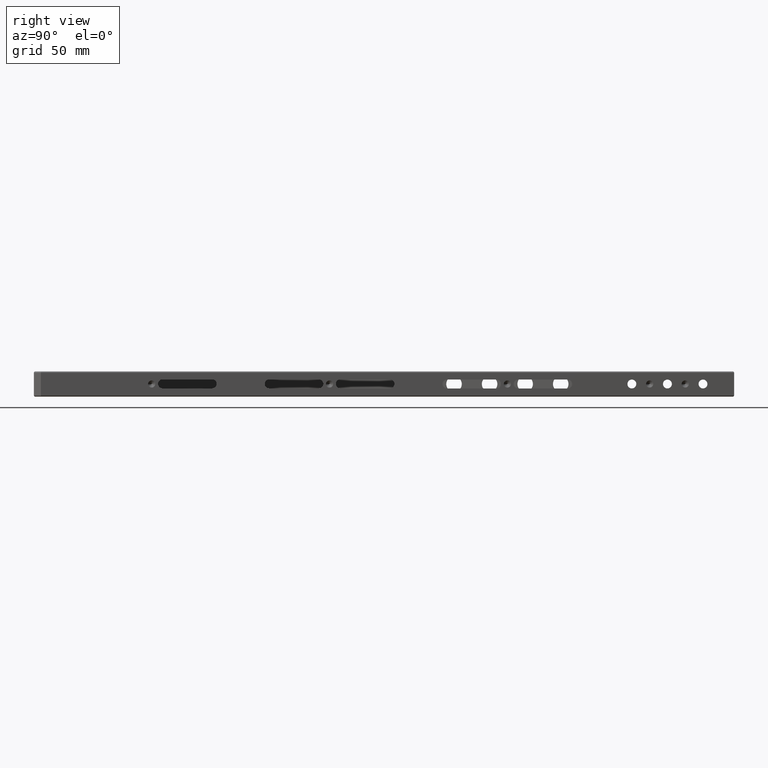
[diagram: clean part render]
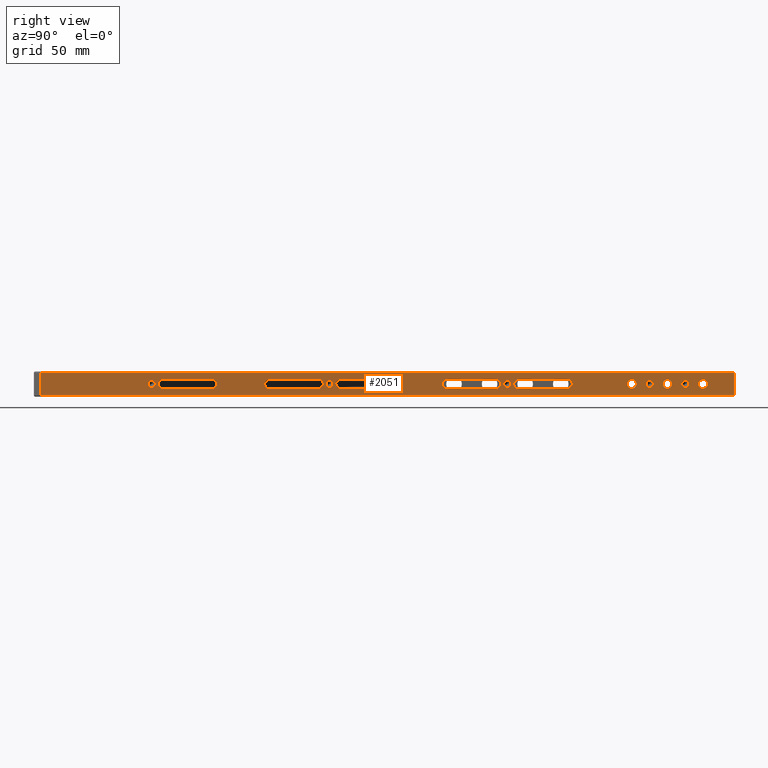
[diagram: same view with one face highlighted and labeled with its STEP entity id]
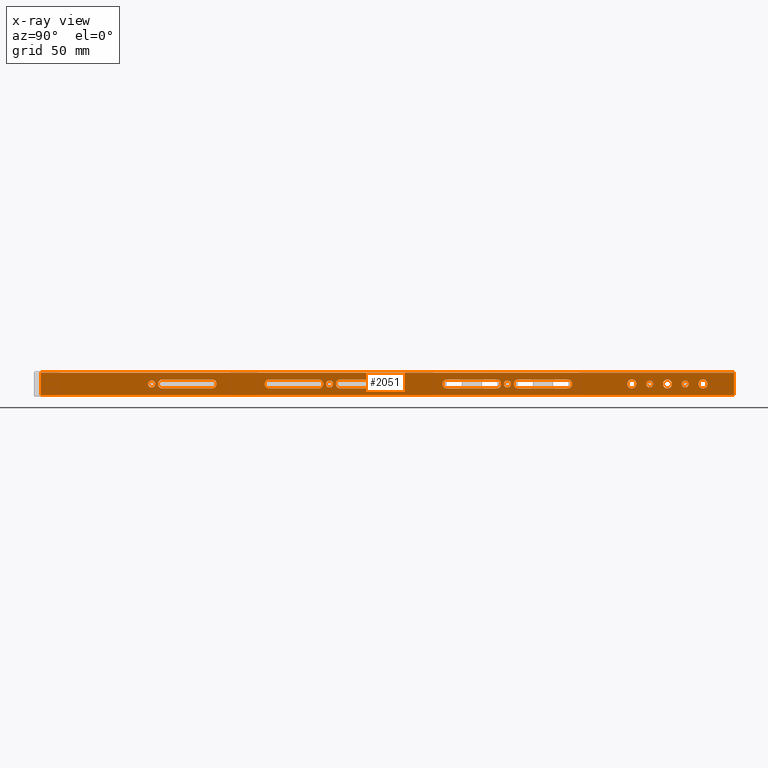
[diagram: x-ray of the same camera — body ghosted, the highlighted face saturated]
A machine part, right view. The second image highlights one B-rep face of the part: STEP entity #2051.
The next image is the same camera in x-ray: the body ghosted, the highlighted face saturated — about 0% of this face is hidden behind the body in this view.
In plain terms, the highlighted planar face has unit normal (-1, 0, 0).
Its self-contained STEP definition (entity closure, byte-faithful):
#8 = CARTESIAN_POINT ( 'NONE',  ( 150.0000000000000000, 203.3999999999999800, 5.800000000000416400 ) ) ;
#9 = VERTEX_POINT ( 'NONE', #685 ) ;
#16 = LINE ( 'NONE', #4604, #5385 ) ;
#28 = FACE_BOUND ( 'NONE', #2489, .T. ) ;
#29 = CARTESIAN_POINT ( 'NONE',  ( 150.0000000000000000, 254.1999999999999900, 12.20000000000054300 ) ) ;
#41 = CARTESIAN_POINT ( 'NONE',  ( 150.0000000000000000, 101.7999999999999800, 5.800000000000027400 ) ) ;
#46 = EDGE_CURVE ( 'NONE', #4584, #6433, #2577, .T. ) ;
#77 = EDGE_CURVE ( 'NONE', #6859, #6425, #1132, .T. ) ;
#132 = DIRECTION ( 'NONE',  ( 0.0000000000000000000, -1.000000000000000000, 0.0000000000000000000 ) ) ;
#161 = CARTESIAN_POINT ( 'NONE',  ( 150.0000000000000000, 218.7999999999999800, 5.800000000000471400 ) ) ;
#175 = LINE ( 'NONE', #3985, #5198 ) ;
#192 = FACE_BOUND ( 'NONE', #928, .T. ) ;
#214 = ORIENTED_EDGE ( 'NONE', *, *, #2176, .F. ) ;
#218 = CARTESIAN_POINT ( 'NONE',  ( 150.0000000000000000, 211.1000000000000500, 8.999999999999952000 ) ) ;
#231 = CIRCLE ( 'NONE', #4279, 3.174999999999983400 ) ;
#245 = ORIENTED_EDGE ( 'NONE', *, *, #1194, .F. ) ;
#252 = CARTESIAN_POINT ( 'NONE',  ( 149.9999999999999400, 477.7999999999997800, 9.000000000000007100 ) ) ;
#262 = VERTEX_POINT ( 'NONE', #2426 ) ;
#285 = VERTEX_POINT ( 'NONE', #2926 ) ;
#288 = DIRECTION ( 'NONE',  ( 1.000000000000000000, 0.0000000000000000000, 0.0000000000000000000 ) ) ;
#320 = VERTEX_POINT ( 'NONE', #8 ) ;
#348 = DIRECTION ( 'NONE',  ( -0.0000000000000000000, 1.000000000000000000, 8.673617379884028100E-017 ) ) ;
#356 = CIRCLE ( 'NONE', #2491, 3.199999999999998000 ) ;
#362 = FACE_BOUND ( 'NONE', #4912, .T. ) ;
#375 = DIRECTION ( 'NONE',  ( 1.000000000000000000, -0.0000000000000000000, -0.0000000000000000000 ) ) ;
#379 = ORIENTED_EDGE ( 'NONE', *, *, #2194, .F. ) ;
#416 = DIRECTION ( 'NONE',  ( 1.000000000000000000, -0.0000000000000000000, -0.0000000000000000000 ) ) ;
#436 = DIRECTION ( 'NONE',  ( 0.0000000000000000000, 0.0000000000000000000, -1.000000000000000000 ) ) ;
#449 = DIRECTION ( 'NONE',  ( 1.000000000000000000, 0.0000000000000000000, 0.0000000000000000000 ) ) ;
#461 = CARTESIAN_POINT ( 'NONE',  ( 150.0000000000000000, 211.1000000000000500, 8.999999999999952000 ) ) ;
#487 = CARTESIAN_POINT ( 'NONE',  ( 150.0000000000000000, 465.0999999999999700, 6.447299999999989600 ) ) ;
#508 = CARTESIAN_POINT ( 'NONE',  ( 150.0000000000000000, 218.7999999999999800, 9.000000000000451200 ) ) ;
#546 = CARTESIAN_POINT ( 'NONE',  ( 150.0000000000000000, 295.0000000000000000, 9.000000000000785100 ) ) ;
#571 = EDGE_LOOP ( 'NONE', ( #4186, #4226, #6744, #3791 ) ) ;
#595 = DIRECTION ( 'NONE',  ( 1.000000000000000000, 0.0000000000000000000, 0.0000000000000000000 ) ) ;
#621 = CARTESIAN_POINT ( 'NONE',  ( 149.9999999999999400, 452.3999999999998100, 12.17499999999999200 ) ) ;
#622 = EDGE_LOOP ( 'NONE', ( #1507, #3238 ) ) ;
#685 = CARTESIAN_POINT ( 'NONE',  ( 150.0000000000000000, 5.000000000000004400, 17.00000000000001400 ) ) ;
#689 = VERTEX_POINT ( 'NONE', #1987 ) ;
#709 = CARTESIAN_POINT ( 'NONE',  ( 149.9999999999999400, 452.3999999999998100, 9.000000000000007100 ) ) ;
#734 = DIRECTION ( 'NONE',  ( 0.0000000000000000000, 0.0000000000000000000, -1.000000000000000000 ) ) ;
#755 = CARTESIAN_POINT ( 'NONE',  ( 150.0000000000000000, 500.0000000000000000, 18.00000000000001400 ) ) ;
#756 = DIRECTION ( 'NONE',  ( 0.0000000000000000000, 0.0000000000000000000, 1.000000000000000000 ) ) ;
#765 = DIRECTION ( 'NONE',  ( 0.0000000000000000000, 0.0000000000000000000, 1.000000000000000000 ) ) ;
#776 = ORIENTED_EDGE ( 'NONE', *, *, #4236, .T. ) ;
#790 = DIRECTION ( 'NONE',  ( 0.0000000000000000000, 0.0000000000000000000, -1.000000000000000000 ) ) ;
#815 = VECTOR ( 'NONE', #2643, 1000.000000000000000 ) ;
#821 = VERTEX_POINT ( 'NONE', #1696 ) ;
#928 = EDGE_LOOP ( 'NONE', ( #1326, #2998 ) ) ;
#947 = CIRCLE ( 'NONE', #6216, 3.174999999999983400 ) ;
#981 = DIRECTION ( 'NONE',  ( 0.0000000000000000000, 0.0000000000000000000, -1.000000000000000000 ) ) ;
#994 = EDGE_CURVE ( 'NONE', #2517, #320, #5295, .T. ) ;
#1028 = VERTEX_POINT ( 'NONE', #5683 ) ;
#1031 = VERTEX_POINT ( 'NONE', #161 ) ;
#1071 = CARTESIAN_POINT ( 'NONE',  ( 150.0000000000000000, 345.8000000000000100, 9.000000000000895300 ) ) ;
#1075 = CIRCLE ( 'NONE', #2473, 2.552700000000018800 ) ;
#1077 = DIRECTION ( 'NONE',  ( 0.0000000000000000000, 0.0000000000000000000, -1.000000000000000000 ) ) ;
#1090 = LINE ( 'NONE', #1542, #6645 ) ;
#1106 = EDGE_LOOP ( 'NONE', ( #2374, #2912 ) ) ;
#1114 = CIRCLE ( 'NONE', #2623, 3.199999999999998000 ) ;
#1116 = DIRECTION ( 'NONE',  ( -0.0000000000000000000, -1.000000000000000000, -0.0000000000000000000 ) ) ;
#1129 = CARTESIAN_POINT ( 'NONE',  ( 150.0000000000000000, 203.4000000000000100, 9.000000000000451200 ) ) ;
#1132 = LINE ( 'NONE', #755, #4446 ) ;
#1140 = VERTEX_POINT ( 'NONE', #3010 ) ;
#1194 = EDGE_CURVE ( 'NONE', #4484, #5537, #2002, .T. ) ;
#1222 = CARTESIAN_POINT ( 'NONE',  ( 150.0000000000000000, 167.9999999999999700, 9.000000000000341100 ) ) ;
#1240 = DIRECTION ( 'NONE',  ( 0.0000000000000000000, 0.0000000000000000000, 1.000000000000000000 ) ) ;
#1252 = CARTESIAN_POINT ( 'NONE',  ( 150.0000000000000000, 439.6999999999999900, 9.000000000000007100 ) ) ;
#1279 = VERTEX_POINT ( 'NONE', #4082 ) ;
#1298 = DIRECTION ( 'NONE',  ( -0.0000000000000000000, -0.0000000000000000000, -1.000000000000000000 ) ) ;
#1301 = PLANE ( 'NONE',  #6727 ) ;
#1320 = LINE ( 'NONE', #5812, #815 ) ;
#1326 = ORIENTED_EDGE ( 'NONE', *, *, #6048, .F. ) ;
#1339 = CARTESIAN_POINT ( 'NONE',  ( 149.9999999999999400, 477.7999999999997800, 9.000000000000007100 ) ) ;
#1357 = EDGE_CURVE ( 'NONE', #6868, #4362, #3101, .T. ) ;
#1410 = CARTESIAN_POINT ( 'NONE',  ( 150.0000000000000000, 439.6999999999999900, 6.447299999999989600 ) ) ;
#1433 = FACE_BOUND ( 'NONE', #5258, .T. ) ;
#1453 = EDGE_CURVE ( 'NONE', #821, #1140, #6538, .T. ) ;
#1493 = EDGE_CURVE ( 'NONE', #2802, #2970, #2846, .T. ) ;
#1506 = DIRECTION ( 'NONE',  ( 0.0000000000000000000, 0.0000000000000000000, -1.000000000000000000 ) ) ;
#1507 = ORIENTED_EDGE ( 'NONE', *, *, #2041, .F. ) ;
#1535 = CARTESIAN_POINT ( 'NONE',  ( 150.0000000000000000, 295.0000000000000000, 12.20000000000076700 ) ) ;
#1542 = CARTESIAN_POINT ( 'NONE',  ( 150.0000000000000000, 305.0000000000000000, 5.800000000000748600 ) ) ;
#1569 = CARTESIAN_POINT ( 'NONE',  ( 149.9999999999999400, 426.9999999999998300, 9.000000000000007100 ) ) ;
#1578 = EDGE_CURVE ( 'NONE', #2970, #2802, #1075, .T. ) ;
#1593 = FACE_BOUND ( 'NONE', #3391, .T. ) ;
#1594 = EDGE_CURVE ( 'NONE', #5477, #6572, #175, .T. ) ;
#1597 = DIRECTION ( 'NONE',  ( 0.0000000000000000000, 0.0000000000000000000, -1.000000000000000000 ) ) ;
#1604 = DIRECTION ( 'NONE',  ( 1.000000000000000000, -0.0000000000000000000, -0.0000000000000000000 ) ) ;
#1655 = DIRECTION ( 'NONE',  ( 1.000000000000000000, -0.0000000000000000000, -0.0000000000000000000 ) ) ;
#1696 = CARTESIAN_POINT ( 'NONE',  ( 150.0000000000000000, 127.2000000000000000, 12.20000000000009900 ) ) ;
#1754 = FACE_BOUND ( 'NONE', #2001, .T. ) ;
#1766 = EDGE_CURVE ( 'NONE', #6572, #1031, #5281, .T. ) ;
#1799 = EDGE_CURVE ( 'NONE', #6034, #6425, #1320, .T. ) ;
#1811 = CARTESIAN_POINT ( 'NONE',  ( 150.0000000000000000, 500.0000000000000000, 17.00000000000001400 ) ) ;
#1827 = EDGE_LOOP ( 'NONE', ( #2642, #5836 ) ) ;
#1843 = AXIS2_PLACEMENT_3D ( 'NONE', #5740, #2522, #6283 ) ;
#1881 = DIRECTION ( 'NONE',  ( -1.000000000000000000, -0.0000000000000000000, -0.0000000000000000000 ) ) ;
#1918 = DIRECTION ( 'NONE',  ( -1.000000000000000000, 0.0000000000000000000, 0.0000000000000000000 ) ) ;
#1923 = DIRECTION ( 'NONE',  ( -1.000000000000000000, -0.0000000000000000000, -0.0000000000000000000 ) ) ;
#1946 = CARTESIAN_POINT ( 'NONE',  ( 150.0000000000000000, 295.0000000000000000, 5.800000000000748600 ) ) ;
#1958 = CIRCLE ( 'NONE', #1843, 3.199999999999998000 ) ;
#1979 = EDGE_CURVE ( 'NONE', #5668, #3615, #3522, .T. ) ;
#1980 = ORIENTED_EDGE ( 'NONE', *, *, #6396, .F. ) ;
#1987 = CARTESIAN_POINT ( 'NONE',  ( 150.0000000000000000, 91.79999999999999700, 5.800000000000027400 ) ) ;
#1998 = ORIENTED_EDGE ( 'NONE', *, *, #4274, .F. ) ;
#2001 = EDGE_LOOP ( 'NONE', ( #1980, #5556, #5409, #5918 ) ) ;
#2002 = LINE ( 'NONE', #4054, #4864 ) ;
#2021 = AXIS2_PLACEMENT_3D ( 'NONE', #1339, #1881, #6715 ) ;
#2029 = DIRECTION ( 'NONE',  ( 0.0000000000000000000, 0.0000000000000000000, -1.000000000000000000 ) ) ;
#2041 = EDGE_CURVE ( 'NONE', #6261, #6194, #3197, .T. ) ;
#2051 = ADVANCED_FACE ( 'NONE', ( #362, #1754, #5894, #4462, #3033, #1593, #192, #5718, #4288, #2867, #1433, #28, #5552, #4125 ), #1301, .F. ) ;
#2064 = VERTEX_POINT ( 'NONE', #1946 ) ;
#2083 = EDGE_CURVE ( 'NONE', #320, #285, #6824, .T. ) ;
#2090 = CIRCLE ( 'NONE', #2211, 2.552700000000018800 ) ;
#2100 = DIRECTION ( 'NONE',  ( 0.0000000000000000000, 0.0000000000000000000, 1.000000000000000000 ) ) ;
#2101 = ORIENTED_EDGE ( 'NONE', *, *, #6511, .F. ) ;
#2103 = DIRECTION ( 'NONE',  ( 0.0000000000000000000, 0.0000000000000000000, -1.000000000000000000 ) ) ;
#2127 = ORIENTED_EDGE ( 'NONE', *, *, #5632, .T. ) ;
#2139 = CARTESIAN_POINT ( 'NONE',  ( 149.9999999999999400, 477.7999999999997800, 12.17499999999999200 ) ) ;
#2153 = DIRECTION ( 'NONE',  ( 0.0000000000000000000, -1.000000000000000000, 0.0000000000000000000 ) ) ;
#2163 = EDGE_CURVE ( 'NONE', #5816, #1028, #2174, .T. ) ;
#2168 = CARTESIAN_POINT ( 'NONE',  ( 150.0000000000000000, 5.000000000000004400, 17.00000000000001400 ) ) ;
#2174 = CIRCLE ( 'NONE', #2243, 2.552700000000018800 ) ;
#2176 = EDGE_CURVE ( 'NONE', #1028, #5816, #6469, .T. ) ;
#2194 = EDGE_CURVE ( 'NONE', #1031, #3103, #4712, .T. ) ;
#2211 = AXIS2_PLACEMENT_3D ( 'NONE', #3012, #6785, #3532 ) ;
#2219 = DIRECTION ( 'NONE',  ( 0.0000000000000000000, -1.000000000000000000, 0.0000000000000000000 ) ) ;
#2243 = AXIS2_PLACEMENT_3D ( 'NONE', #1252, #4482, #4990 ) ;
#2315 = VECTOR ( 'NONE', #6346, 1000.000000000000000 ) ;
#2328 = DIRECTION ( 'NONE',  ( 1.000000000000000000, -0.0000000000000000000, -0.0000000000000000000 ) ) ;
#2343 = CARTESIAN_POINT ( 'NONE',  ( 149.9999999999999400, 477.7999999999997800, 5.825000000000024200 ) ) ;
#2374 = ORIENTED_EDGE ( 'NONE', *, *, #1493, .F. ) ;
#2426 = CARTESIAN_POINT ( 'NONE',  ( 149.9999999999999400, 426.9999999999998300, 12.17499999999999200 ) ) ;
#2434 = EDGE_CURVE ( 'NONE', #5688, #2517, #356, .T. ) ;
#2437 = DIRECTION ( 'NONE',  ( 0.0000000000000000000, 0.0000000000000000000, -1.000000000000000000 ) ) ;
#2458 = EDGE_CURVE ( 'NONE', #2064, #2795, #1090, .T. ) ;
#2469 = VECTOR ( 'NONE', #132, 1000.000000000000000 ) ;
#2470 = DIRECTION ( 'NONE',  ( -1.000000000000000000, -0.0000000000000000000, -0.0000000000000000000 ) ) ;
#2471 = DIRECTION ( 'NONE',  ( 1.000000000000000000, 0.0000000000000000000, 0.0000000000000000000 ) ) ;
#2473 = AXIS2_PLACEMENT_3D ( 'NONE', #4880, #1655, #790 ) ;
#2478 = CIRCLE ( 'NONE', #4327, 3.199999999999998000 ) ;
#2485 = CARTESIAN_POINT ( 'NONE',  ( 150.0000000000000000, 211.1000000000000500, 11.55269999999994300 ) ) ;
#2489 = EDGE_LOOP ( 'NONE', ( #2127, #3192 ) ) ;
#2491 = AXIS2_PLACEMENT_3D ( 'NONE', #1222, #6474, #2437 ) ;
#2501 = CARTESIAN_POINT ( 'NONE',  ( 150.0000000000000000, 228.8000000000000100, 5.800000000000471400 ) ) ;
#2505 = VERTEX_POINT ( 'NONE', #1535 ) ;
#2517 = VERTEX_POINT ( 'NONE', #2545 ) ;
#2522 = DIRECTION ( 'NONE',  ( 1.000000000000000000, 0.0000000000000000000, 0.0000000000000000000 ) ) ;
#2527 = DIRECTION ( 'NONE',  ( 1.000000000000000000, 0.0000000000000000000, 0.0000000000000000000 ) ) ;
#2530 = LINE ( 'NONE', #2168, #5977 ) ;
#2545 = CARTESIAN_POINT ( 'NONE',  ( 150.0000000000000000, 167.9999999999999700, 5.800000000000304500 ) ) ;
#2562 = EDGE_CURVE ( 'NONE', #9, #6034, #3746, .T. ) ;
#2577 = CIRCLE ( 'NONE', #6027, 2.552699999999990900 ) ;
#2623 = AXIS2_PLACEMENT_3D ( 'NONE', #3484, #288, #4018 ) ;
#2627 = AXIS2_PLACEMENT_3D ( 'NONE', #3947, #2328, #5532 ) ;
#2642 = ORIENTED_EDGE ( 'NONE', *, *, #4649, .T. ) ;
#2643 = DIRECTION ( 'NONE',  ( 0.0000000000000000000, 1.000000000000000000, 0.0000000000000000000 ) ) ;
#2670 = EDGE_CURVE ( 'NONE', #3524, #1279, #2744, .T. ) ;
#2680 = ORIENTED_EDGE ( 'NONE', *, *, #6747, .F. ) ;
#2699 = AXIS2_PLACEMENT_3D ( 'NONE', #508, #2527, #1506 ) ;
#2708 = ORIENTED_EDGE ( 'NONE', *, *, #2458, .F. ) ;
#2727 = CARTESIAN_POINT ( 'NONE',  ( 150.0000000000000000, 345.8000000000000100, 5.800000000000915500 ) ) ;
#2744 = CIRCLE ( 'NONE', #4153, 2.552700000000005100 ) ;
#2764 = VECTOR ( 'NONE', #3124, 1000.000000000000000 ) ;
#2795 = VERTEX_POINT ( 'NONE', #6320 ) ;
#2802 = VERTEX_POINT ( 'NONE', #487 ) ;
#2846 = CIRCLE ( 'NONE', #5856, 2.552700000000018800 ) ;
#2867 = FACE_BOUND ( 'NONE', #1106, .T. ) ;
#2912 = ORIENTED_EDGE ( 'NONE', *, *, #1578, .F. ) ;
#2926 = CARTESIAN_POINT ( 'NONE',  ( 150.0000000000000000, 203.4000000000000100, 12.20000000000043300 ) ) ;
#2955 = CARTESIAN_POINT ( 'NONE',  ( 149.9999999999999400, 452.3999999999998100, 5.825000000000024200 ) ) ;
#2970 = VERTEX_POINT ( 'NONE', #6543 ) ;
#2998 = ORIENTED_EDGE ( 'NONE', *, *, #2670, .F. ) ;
#3010 = CARTESIAN_POINT ( 'NONE',  ( 150.0000000000000000, 91.79999999999999700, 12.20000000000009900 ) ) ;
#3012 = CARTESIAN_POINT ( 'NONE',  ( 150.0000000000000000, 338.1000000000000200, 8.999999999999952000 ) ) ;
#3033 = FACE_BOUND ( 'NONE', #4889, .T. ) ;
#3101 = LINE ( 'NONE', #5412, #2764 ) ;
#3103 = VERTEX_POINT ( 'NONE', #3454 ) ;
#3124 = DIRECTION ( 'NONE',  ( 0.0000000000000000000, -1.000000000000000000, 0.0000000000000000000 ) ) ;
#3168 = CARTESIAN_POINT ( 'NONE',  ( 150.0000000000000000, 218.7999999999999800, 12.20000000000054300 ) ) ;
#3184 = ORIENTED_EDGE ( 'NONE', *, *, #46, .F. ) ;
#3192 = ORIENTED_EDGE ( 'NONE', *, *, #6960, .T. ) ;
#3197 = CIRCLE ( 'NONE', #4907, 2.552700000000018800 ) ;
#3238 = ORIENTED_EDGE ( 'NONE', *, *, #5797, .F. ) ;
#3272 = CARTESIAN_POINT ( 'NONE',  ( 150.0000000000000000, 381.1999999999999900, 5.800000000001026600 ) ) ;
#3280 = VECTOR ( 'NONE', #348, 1000.000000000000000 ) ;
#3344 = EDGE_CURVE ( 'NONE', #4362, #4484, #2478, .T. ) ;
#3372 = EDGE_LOOP ( 'NONE', ( #3886, #2101, #379, #6193 ) ) ;
#3391 = EDGE_LOOP ( 'NONE', ( #3184, #5571 ) ) ;
#3450 = VERTEX_POINT ( 'NONE', #621 ) ;
#3454 = CARTESIAN_POINT ( 'NONE',  ( 150.0000000000000000, 254.1999999999999900, 5.800000000000582500 ) ) ;
#3484 = CARTESIAN_POINT ( 'NONE',  ( 150.0000000000000000, 330.4000000000000300, 9.000000000000895300 ) ) ;
#3522 = CIRCLE ( 'NONE', #2021, 3.174999999999983400 ) ;
#3524 = VERTEX_POINT ( 'NONE', #4309 ) ;
#3532 = DIRECTION ( 'NONE',  ( 0.0000000000000000000, 0.0000000000000000000, -1.000000000000000000 ) ) ;
#3551 = CARTESIAN_POINT ( 'NONE',  ( 150.0000000000000000, 500.0000000000000000, 1.000000000000000900 ) ) ;
#3605 = AXIS2_PLACEMENT_3D ( 'NONE', #546, #4294, #1077 ) ;
#3615 = VERTEX_POINT ( 'NONE', #2139 ) ;
#3630 = DIRECTION ( 'NONE',  ( 1.000000000000000000, 0.0000000000000000000, 0.0000000000000000000 ) ) ;
#3649 = CARTESIAN_POINT ( 'NONE',  ( 150.0000000000000000, 254.1999999999999900, 9.000000000000563100 ) ) ;
#3661 = VERTEX_POINT ( 'NONE', #4957 ) ;
#3712 = CIRCLE ( 'NONE', #3743, 3.174999999999983400 ) ;
#3718 = CIRCLE ( 'NONE', #4047, 3.199999999999997100 ) ;
#3743 = AXIS2_PLACEMENT_3D ( 'NONE', #252, #3984, #765 ) ;
#3746 = LINE ( 'NONE', #4704, #2315 ) ;
#3766 = DIRECTION ( 'NONE',  ( -0.0000000000000000000, 1.000000000000000000, 8.673617379884040400E-017 ) ) ;
#3776 = EDGE_CURVE ( 'NONE', #5537, #6868, #3718, .T. ) ;
#3791 = ORIENTED_EDGE ( 'NONE', *, *, #6116, .T. ) ;
#3820 = ORIENTED_EDGE ( 'NONE', *, *, #2163, .F. ) ;
#3850 = CARTESIAN_POINT ( 'NONE',  ( 150.0000000000000000, 305.0000000000000000, 12.20000000000076700 ) ) ;
#3882 = DIRECTION ( 'NONE',  ( -0.0000000000000000000, 1.000000000000000000, 8.673617379884028100E-017 ) ) ;
#3886 = ORIENTED_EDGE ( 'NONE', *, *, #1594, .F. ) ;
#3945 = DIRECTION ( 'NONE',  ( 1.000000000000000000, -0.0000000000000000000, -0.0000000000000000000 ) ) ;
#3947 = CARTESIAN_POINT ( 'NONE',  ( 150.0000000000000000, 439.6999999999999900, 9.000000000000007100 ) ) ;
#3960 = EDGE_CURVE ( 'NONE', #4244, #262, #231, .T. ) ;
#3984 = DIRECTION ( 'NONE',  ( -1.000000000000000000, -0.0000000000000000000, -0.0000000000000000000 ) ) ;
#3985 = CARTESIAN_POINT ( 'NONE',  ( 150.0000000000000000, 228.8000000000000100, 12.20000000000054300 ) ) ;
#4005 = AXIS2_PLACEMENT_3D ( 'NONE', #461, #4201, #981 ) ;
#4018 = DIRECTION ( 'NONE',  ( 0.0000000000000000000, 0.0000000000000000000, -1.000000000000000000 ) ) ;
#4047 = AXIS2_PLACEMENT_3D ( 'NONE', #5692, #2471, #6231 ) ;
#4054 = CARTESIAN_POINT ( 'NONE',  ( 150.0000000000000000, 355.8000000000000100, 5.800000000000915500 ) ) ;
#4082 = CARTESIAN_POINT ( 'NONE',  ( 150.0000000000000000, 84.10000000000000900, 6.447299999999947900 ) ) ;
#4125 = FACE_OUTER_BOUND ( 'NONE', #571, .T. ) ;
#4153 = AXIS2_PLACEMENT_3D ( 'NONE', #5214, #416, #2029 ) ;
#4164 = AXIS2_PLACEMENT_3D ( 'NONE', #709, #4471, #1240 ) ;
#4180 = CARTESIAN_POINT ( 'NONE',  ( 150.0000000000000000, 345.8000000000000100, 12.20000000000098700 ) ) ;
#4186 = ORIENTED_EDGE ( 'NONE', *, *, #2562, .T. ) ;
#4192 = DIRECTION ( 'NONE',  ( 0.0000000000000000000, 0.0000000000000000000, -1.000000000000000000 ) ) ;
#4201 = DIRECTION ( 'NONE',  ( 1.000000000000000000, -0.0000000000000000000, -0.0000000000000000000 ) ) ;
#4226 = ORIENTED_EDGE ( 'NONE', *, *, #1799, .T. ) ;
#4229 = AXIS2_PLACEMENT_3D ( 'NONE', #4841, #1604, #5387 ) ;
#4236 = EDGE_CURVE ( 'NONE', #262, #4244, #6595, .T. ) ;
#4244 = VERTEX_POINT ( 'NONE', #5142 ) ;
#4274 = EDGE_CURVE ( 'NONE', #3661, #821, #1958, .T. ) ;
#4279 = AXIS2_PLACEMENT_3D ( 'NONE', #1569, #5346, #2100 ) ;
#4288 = FACE_BOUND ( 'NONE', #4885, .T. ) ;
#4294 = DIRECTION ( 'NONE',  ( 1.000000000000000000, 0.0000000000000000000, 0.0000000000000000000 ) ) ;
#4309 = CARTESIAN_POINT ( 'NONE',  ( 150.0000000000000000, 84.10000000000000900, 11.55269999999995700 ) ) ;
#4318 = CIRCLE ( 'NONE', #4005, 2.552699999999990900 ) ;
#4327 = AXIS2_PLACEMENT_3D ( 'NONE', #1071, #4829, #1597 ) ;
#4351 = EDGE_CURVE ( 'NONE', #6433, #4584, #4318, .T. ) ;
#4362 = VERTEX_POINT ( 'NONE', #4180 ) ;
#4418 = ORIENTED_EDGE ( 'NONE', *, *, #4837, .F. ) ;
#4436 = DIRECTION ( 'NONE',  ( -0.0000000000000000000, 1.000000000000000000, 8.673617379884028100E-017 ) ) ;
#4446 = VECTOR ( 'NONE', #1298, 1000.000000000000000 ) ;
#4462 = FACE_BOUND ( 'NONE', #5907, .T. ) ;
#4466 = CARTESIAN_POINT ( 'NONE',  ( 150.0000000000000000, 101.8000000000000000, 12.20000000000009900 ) ) ;
#4471 = DIRECTION ( 'NONE',  ( -1.000000000000000000, -0.0000000000000000000, -0.0000000000000000000 ) ) ;
#4480 = ORIENTED_EDGE ( 'NONE', *, *, #3776, .F. ) ;
#4482 = DIRECTION ( 'NONE',  ( 1.000000000000000000, -0.0000000000000000000, -0.0000000000000000000 ) ) ;
#4484 = VERTEX_POINT ( 'NONE', #2727 ) ;
#4584 = VERTEX_POINT ( 'NONE', #6064 ) ;
#4604 = CARTESIAN_POINT ( 'NONE',  ( 150.0000000000000000, 178.0000000000000000, 12.20000000000032300 ) ) ;
#4607 = ORIENTED_EDGE ( 'NONE', *, *, #1453, .F. ) ;
#4649 = EDGE_CURVE ( 'NONE', #3615, #5668, #3712, .T. ) ;
#4704 = CARTESIAN_POINT ( 'NONE',  ( 150.0000000000000000, 5.000000000000004400, 18.00000000000001400 ) ) ;
#4709 = EDGE_CURVE ( 'NONE', #1140, #689, #5916, .T. ) ;
#4712 = LINE ( 'NONE', #2501, #3280 ) ;
#4729 = VERTEX_POINT ( 'NONE', #5807 ) ;
#4732 = CIRCLE ( 'NONE', #3605, 3.199999999999998000 ) ;
#4735 = ORIENTED_EDGE ( 'NONE', *, *, #3344, .F. ) ;
#4797 = CARTESIAN_POINT ( 'NONE',  ( 150.0000000000000000, 338.1000000000000200, 8.999999999999952000 ) ) ;
#4829 = DIRECTION ( 'NONE',  ( 1.000000000000000000, 0.0000000000000000000, 0.0000000000000000000 ) ) ;
#4837 = EDGE_CURVE ( 'NONE', #2505, #2064, #4732, .T. ) ;
#4841 = CARTESIAN_POINT ( 'NONE',  ( 150.0000000000000000, 84.10000000000000900, 8.999999999999952000 ) ) ;
#4864 = VECTOR ( 'NONE', #5132, 1000.000000000000000 ) ;
#4871 = LINE ( 'NONE', #41, #6652 ) ;
#4876 = CIRCLE ( 'NONE', #4164, 3.174999999999983400 ) ;
#4880 = CARTESIAN_POINT ( 'NONE',  ( 150.0000000000000000, 465.0999999999999700, 9.000000000000007100 ) ) ;
#4885 = EDGE_LOOP ( 'NONE', ( #3820, #214 ) ) ;
#4889 = EDGE_LOOP ( 'NONE', ( #6963, #4480, #245, #4735 ) ) ;
#4907 = AXIS2_PLACEMENT_3D ( 'NONE', #4797, #5350, #2103 ) ;
#4912 = EDGE_LOOP ( 'NONE', ( #4607, #1998, #6337, #6539 ) ) ;
#4957 = CARTESIAN_POINT ( 'NONE',  ( 150.0000000000000000, 127.1999999999999700, 5.800000000000138400 ) ) ;
#4990 = DIRECTION ( 'NONE',  ( 0.0000000000000000000, 0.0000000000000000000, -1.000000000000000000 ) ) ;
#5035 = CARTESIAN_POINT ( 'NONE',  ( 150.0000000000000000, 338.1000000000000200, 6.447299999999933600 ) ) ;
#5044 = CARTESIAN_POINT ( 'NONE',  ( 150.0000000000000000, 167.9999999999999700, 12.20000000000032300 ) ) ;
#5103 = VECTOR ( 'NONE', #2219, 1000.000000000000000 ) ;
#5132 = DIRECTION ( 'NONE',  ( -0.0000000000000000000, 1.000000000000000000, 8.673617379884028100E-017 ) ) ;
#5138 = DIRECTION ( 'NONE',  ( 0.0000000000000000000, 0.0000000000000000000, -1.000000000000000000 ) ) ;
#5142 = CARTESIAN_POINT ( 'NONE',  ( 149.9999999999999400, 426.9999999999998300, 5.825000000000024200 ) ) ;
#5149 = CARTESIAN_POINT ( 'NONE',  ( 149.9999999999999400, 452.3999999999998100, 9.000000000000007100 ) ) ;
#5155 = LINE ( 'NONE', #3850, #2469 ) ;
#5198 = VECTOR ( 'NONE', #2153, 1000.000000000000000 ) ;
#5214 = CARTESIAN_POINT ( 'NONE',  ( 150.0000000000000000, 84.10000000000000900, 8.999999999999952000 ) ) ;
#5250 = CIRCLE ( 'NONE', #5413, 3.199999999999998000 ) ;
#5258 = EDGE_LOOP ( 'NONE', ( #776, #5508 ) ) ;
#5281 = CIRCLE ( 'NONE', #2699, 3.199999999999998000 ) ;
#5295 = LINE ( 'NONE', #5494, #6553 ) ;
#5346 = DIRECTION ( 'NONE',  ( -1.000000000000000000, -0.0000000000000000000, -0.0000000000000000000 ) ) ;
#5350 = DIRECTION ( 'NONE',  ( 1.000000000000000000, -0.0000000000000000000, -0.0000000000000000000 ) ) ;
#5365 = CARTESIAN_POINT ( 'NONE',  ( 150.0000000000000000, 5.000000000000004400, 1.000000000000000900 ) ) ;
#5385 = VECTOR ( 'NONE', #6218, 1000.000000000000000 ) ;
#5387 = DIRECTION ( 'NONE',  ( 0.0000000000000000000, 0.0000000000000000000, -1.000000000000000000 ) ) ;
#5409 = ORIENTED_EDGE ( 'NONE', *, *, #994, .F. ) ;
#5412 = CARTESIAN_POINT ( 'NONE',  ( 150.0000000000000000, 355.8000000000000100, 12.20000000000087700 ) ) ;
#5413 = AXIS2_PLACEMENT_3D ( 'NONE', #3649, #449, #4192 ) ;
#5448 = DIRECTION ( 'NONE',  ( 0.0000000000000000000, 0.0000000000000000000, -1.000000000000000000 ) ) ;
#5477 = VERTEX_POINT ( 'NONE', #29 ) ;
#5494 = CARTESIAN_POINT ( 'NONE',  ( 150.0000000000000000, 178.0000000000000000, 5.800000000000304500 ) ) ;
#5508 = ORIENTED_EDGE ( 'NONE', *, *, #3960, .T. ) ;
#5521 = CARTESIAN_POINT ( 'NONE',  ( 150.0000000000000000, 338.1000000000000200, 11.55269999999997100 ) ) ;
#5532 = DIRECTION ( 'NONE',  ( 0.0000000000000000000, 0.0000000000000000000, -1.000000000000000000 ) ) ;
#5537 = VERTEX_POINT ( 'NONE', #3272 ) ;
#5547 = AXIS2_PLACEMENT_3D ( 'NONE', #6880, #3630, #436 ) ;
#5552 = FACE_BOUND ( 'NONE', #1827, .T. ) ;
#5556 = ORIENTED_EDGE ( 'NONE', *, *, #2083, .F. ) ;
#5571 = ORIENTED_EDGE ( 'NONE', *, *, #4351, .F. ) ;
#5577 = CARTESIAN_POINT ( 'NONE',  ( 150.0000000000000000, 381.1999999999999900, 12.20000000000098700 ) ) ;
#5632 = EDGE_CURVE ( 'NONE', #3450, #6897, #4876, .T. ) ;
#5668 = VERTEX_POINT ( 'NONE', #2343 ) ;
#5683 = CARTESIAN_POINT ( 'NONE',  ( 150.0000000000000000, 439.6999999999999900, 11.55270000000002600 ) ) ;
#5688 = VERTEX_POINT ( 'NONE', #5044 ) ;
#5691 = CARTESIAN_POINT ( 'NONE',  ( 149.9999999999999400, 426.9999999999998300, 9.000000000000007100 ) ) ;
#5692 = CARTESIAN_POINT ( 'NONE',  ( 150.0000000000000000, 381.1999999999999900, 9.000000000001007200 ) ) ;
#5695 = DIRECTION ( 'NONE',  ( 0.0000000000000000000, 0.0000000000000000000, 1.000000000000000000 ) ) ;
#5718 = FACE_BOUND ( 'NONE', #622, .T. ) ;
#5740 = CARTESIAN_POINT ( 'NONE',  ( 150.0000000000000000, 127.2000000000000000, 9.000000000000119000 ) ) ;
#5797 = EDGE_CURVE ( 'NONE', #6194, #6261, #2090, .T. ) ;
#5807 = CARTESIAN_POINT ( 'NONE',  ( 150.0000000000000000, 330.4000000000000300, 12.20000000000087700 ) ) ;
#5812 = CARTESIAN_POINT ( 'NONE',  ( 150.0000000000000000, 0.0000000000000000000, 1.000000000000000900 ) ) ;
#5816 = VERTEX_POINT ( 'NONE', #1410 ) ;
#5836 = ORIENTED_EDGE ( 'NONE', *, *, #1979, .T. ) ;
#5856 = AXIS2_PLACEMENT_3D ( 'NONE', #5903, #375, #5138 ) ;
#5879 = CARTESIAN_POINT ( 'NONE',  ( 150.0000000000000000, 0.0000000000000000000, 18.00000000000001400 ) ) ;
#5894 = FACE_BOUND ( 'NONE', #3372, .T. ) ;
#5903 = CARTESIAN_POINT ( 'NONE',  ( 150.0000000000000000, 465.0999999999999700, 9.000000000000007100 ) ) ;
#5907 = EDGE_LOOP ( 'NONE', ( #2680, #6667, #2708, #4418 ) ) ;
#5916 = CIRCLE ( 'NONE', #5547, 3.199999999999998000 ) ;
#5918 = ORIENTED_EDGE ( 'NONE', *, *, #2434, .F. ) ;
#5977 = VECTOR ( 'NONE', #1116, 1000.000000000000000 ) ;
#6027 = AXIS2_PLACEMENT_3D ( 'NONE', #218, #3945, #734 ) ;
#6034 = VERTEX_POINT ( 'NONE', #5365 ) ;
#6048 = EDGE_CURVE ( 'NONE', #1279, #3524, #6468, .T. ) ;
#6064 = CARTESIAN_POINT ( 'NONE',  ( 150.0000000000000000, 211.1000000000000500, 6.447299999999961200 ) ) ;
#6065 = EDGE_CURVE ( 'NONE', #689, #3661, #4871, .T. ) ;
#6116 = EDGE_CURVE ( 'NONE', #6859, #9, #2530, .T. ) ;
#6193 = ORIENTED_EDGE ( 'NONE', *, *, #1766, .F. ) ;
#6194 = VERTEX_POINT ( 'NONE', #5521 ) ;
#6216 = AXIS2_PLACEMENT_3D ( 'NONE', #5149, #1923, #5695 ) ;
#6218 = DIRECTION ( 'NONE',  ( 0.0000000000000000000, -1.000000000000000000, 0.0000000000000000000 ) ) ;
#6230 = DIRECTION ( 'NONE',  ( 0.0000000000000000000, 0.0000000000000000000, 1.000000000000000000 ) ) ;
#6231 = DIRECTION ( 'NONE',  ( 0.0000000000000000000, 0.0000000000000000000, -1.000000000000000000 ) ) ;
#6261 = VERTEX_POINT ( 'NONE', #5035 ) ;
#6283 = DIRECTION ( 'NONE',  ( 0.0000000000000000000, 0.0000000000000000000, -1.000000000000000000 ) ) ;
#6309 = AXIS2_PLACEMENT_3D ( 'NONE', #5691, #2470, #6230 ) ;
#6320 = CARTESIAN_POINT ( 'NONE',  ( 150.0000000000000000, 330.3999999999999800, 5.800000000000860500 ) ) ;
#6337 = ORIENTED_EDGE ( 'NONE', *, *, #6065, .F. ) ;
#6346 = DIRECTION ( 'NONE',  ( 0.0000000000000000000, 0.0000000000000000000, -1.000000000000000000 ) ) ;
#6359 = AXIS2_PLACEMENT_3D ( 'NONE', #1129, #595, #5448 ) ;
#6396 = EDGE_CURVE ( 'NONE', #285, #5688, #16, .T. ) ;
#6425 = VERTEX_POINT ( 'NONE', #3551 ) ;
#6433 = VERTEX_POINT ( 'NONE', #2485 ) ;
#6468 = CIRCLE ( 'NONE', #4229, 2.552700000000005100 ) ;
#6469 = CIRCLE ( 'NONE', #2627, 2.552700000000018800 ) ;
#6474 = DIRECTION ( 'NONE',  ( 1.000000000000000000, 0.0000000000000000000, 0.0000000000000000000 ) ) ;
#6511 = EDGE_CURVE ( 'NONE', #3103, #5477, #5250, .T. ) ;
#6538 = LINE ( 'NONE', #4466, #5103 ) ;
#6539 = ORIENTED_EDGE ( 'NONE', *, *, #4709, .F. ) ;
#6543 = CARTESIAN_POINT ( 'NONE',  ( 150.0000000000000000, 465.0999999999999700, 11.55270000000002600 ) ) ;
#6553 = VECTOR ( 'NONE', #3882, 1000.000000000000000 ) ;
#6572 = VERTEX_POINT ( 'NONE', #3168 ) ;
#6595 = CIRCLE ( 'NONE', #6309, 3.174999999999983400 ) ;
#6645 = VECTOR ( 'NONE', #4436, 1000.000000000000000 ) ;
#6652 = VECTOR ( 'NONE', #3766, 1000.000000000000000 ) ;
#6667 = ORIENTED_EDGE ( 'NONE', *, *, #6890, .F. ) ;
#6715 = DIRECTION ( 'NONE',  ( 0.0000000000000000000, 0.0000000000000000000, 1.000000000000000000 ) ) ;
#6727 = AXIS2_PLACEMENT_3D ( 'NONE', #5879, #1918, #756 ) ;
#6744 = ORIENTED_EDGE ( 'NONE', *, *, #77, .F. ) ;
#6747 = EDGE_CURVE ( 'NONE', #4729, #2505, #5155, .T. ) ;
#6785 = DIRECTION ( 'NONE',  ( 1.000000000000000000, -0.0000000000000000000, -0.0000000000000000000 ) ) ;
#6824 = CIRCLE ( 'NONE', #6359, 3.199999999999997100 ) ;
#6859 = VERTEX_POINT ( 'NONE', #1811 ) ;
#6868 = VERTEX_POINT ( 'NONE', #5577 ) ;
#6880 = CARTESIAN_POINT ( 'NONE',  ( 150.0000000000000000, 91.79999999999999700, 9.000000000000007100 ) ) ;
#6890 = EDGE_CURVE ( 'NONE', #2795, #4729, #1114, .T. ) ;
#6897 = VERTEX_POINT ( 'NONE', #2955 ) ;
#6960 = EDGE_CURVE ( 'NONE', #6897, #3450, #947, .T. ) ;
#6963 = ORIENTED_EDGE ( 'NONE', *, *, #1357, .F. ) ;